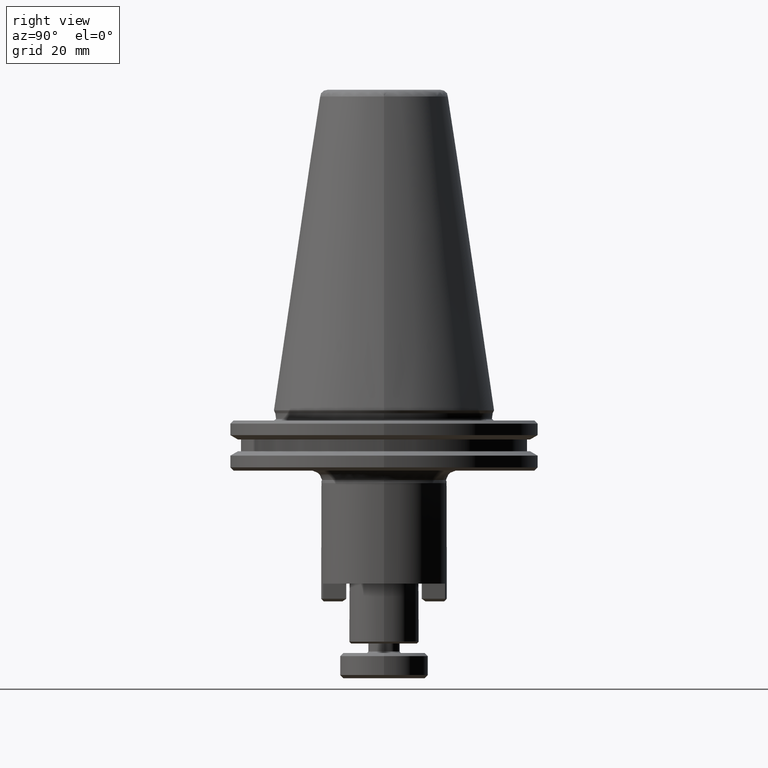
[diagram: clean part render]
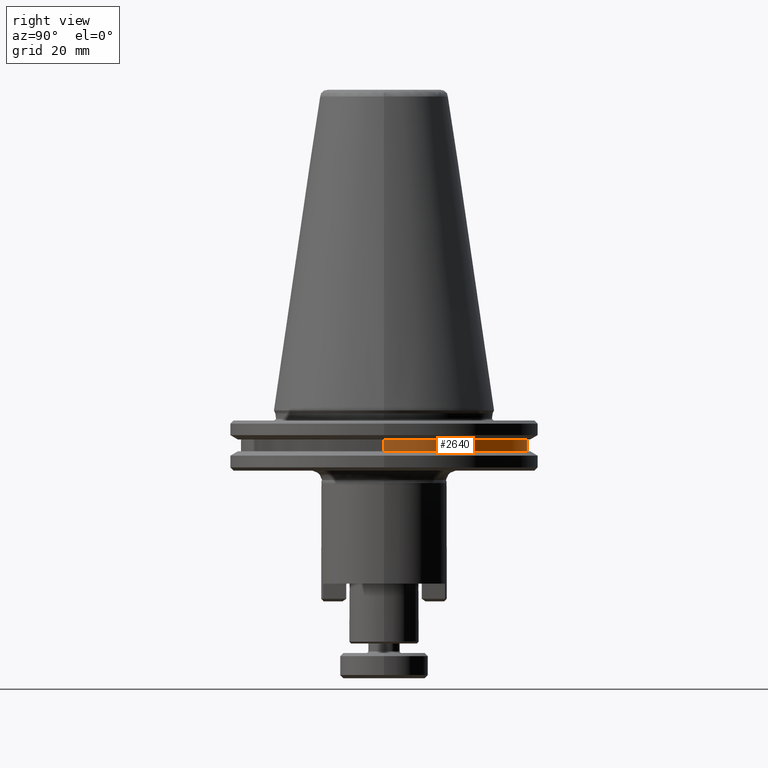
[diagram: same view with one face highlighted and labeled with its STEP entity id]
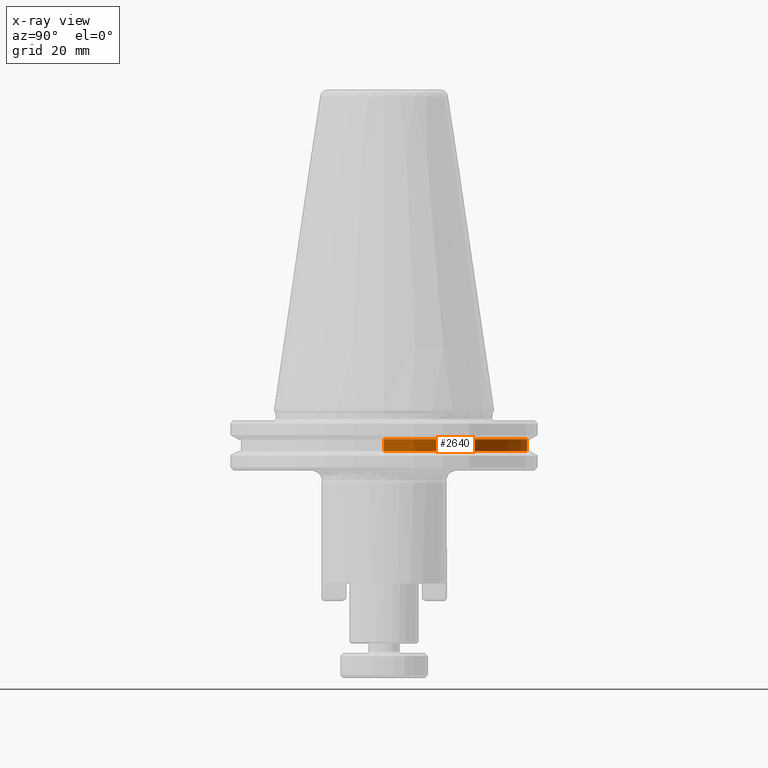
[diagram: x-ray of the same camera — body ghosted, the highlighted face saturated]
A machine part, right view. The second image highlights one B-rep face of the part: STEP entity #2640.
The next image is the same camera in x-ray: the body ghosted, the highlighted face saturated — about 0% of this face is hidden behind the body in this view.
In plain terms, the highlighted cylindrical surface (partial cylindrical patch) has radius 45.6335 mm, axis along (-0, -0, 1).
Its self-contained STEP definition (entity closure, byte-faithful):
#46 = DIRECTION ( 'NONE',  ( 1.000000000000000000, 0.0000000000000000000, 0.0000000000000000000 ) ) ;
#253 = EDGE_CURVE ( 'NONE', #811, #1769, #2678, .T. ) ;
#334 = EDGE_CURVE ( 'NONE', #1118, #450, #1735, .T. ) ;
#450 = VERTEX_POINT ( 'NONE', #611 ) ;
#499 = DIRECTION ( 'NONE',  ( 1.000000000000000000, 0.0000000000000000000, 0.0000000000000000000 ) ) ;
#536 = DIRECTION ( 'NONE',  ( -0.0000000000000000000, -0.0000000000000000000, 1.000000000000000000 ) ) ;
#563 = AXIS2_PLACEMENT_3D ( 'NONE', #2118, #1111, #499 ) ;
#565 = FACE_OUTER_BOUND ( 'NONE', #2100, .T. ) ;
#611 = CARTESIAN_POINT ( 'NONE',  ( 135.0734847565713000, 102.4230254990840100, 89.42642735088047300 ) ) ;
#680 = DIRECTION ( 'NONE',  ( 1.000000000000000000, 0.0000000000000000000, 0.0000000000000000000 ) ) ;
#776 = CARTESIAN_POINT ( 'NONE',  ( 43.80653352854568500, 102.4230254990840100, 85.67642735315523300 ) ) ;
#811 = VERTEX_POINT ( 'NONE', #776 ) ;
#908 = CARTESIAN_POINT ( 'NONE',  ( 89.44000914255849500, 102.4230254990840100, 198.2621979189365200 ) ) ;
#928 = CIRCLE ( 'NONE', #563, 45.63347561401280200 ) ;
#937 = DIRECTION ( 'NONE',  ( -0.0000000000000000000, -0.0000000000000000000, 1.000000000000000000 ) ) ;
#1111 = DIRECTION ( 'NONE',  ( -0.0000000000000000000, -0.0000000000000000000, 1.000000000000000000 ) ) ;
#1112 = ORIENTED_EDGE ( 'NONE', *, *, #253, .T. ) ;
#1118 = VERTEX_POINT ( 'NONE', #2517 ) ;
#1202 = CARTESIAN_POINT ( 'NONE',  ( 135.0734847565713000, 102.4230254990840100, 198.2621979189365200 ) ) ;
#1204 = DIRECTION ( 'NONE',  ( -0.0000000000000000000, -0.0000000000000000000, 1.000000000000000000 ) ) ;
#1267 = EDGE_CURVE ( 'NONE', #1118, #811, #928, .T. ) ;
#1412 = CARTESIAN_POINT ( 'NONE',  ( 43.80653352854568500, 102.4230254990840100, 198.2621979189365200 ) ) ;
#1593 = DIRECTION ( 'NONE',  ( -0.0000000000000000000, -0.0000000000000000000, 1.000000000000000000 ) ) ;
#1604 = EDGE_CURVE ( 'NONE', #450, #1769, #2534, .T. ) ;
#1622 = AXIS2_PLACEMENT_3D ( 'NONE', #2862, #937, #46 ) ;
#1734 = ORIENTED_EDGE ( 'NONE', *, *, #1267, .T. ) ;
#1735 = LINE ( 'NONE', #1202, #1884 ) ;
#1769 = VERTEX_POINT ( 'NONE', #1967 ) ;
#1884 = VECTOR ( 'NONE', #1204, 1000.000000000000000 ) ;
#1967 = CARTESIAN_POINT ( 'NONE',  ( 43.80653352854568500, 102.4230254990840100, 89.42642735088047300 ) ) ;
#2100 = EDGE_LOOP ( 'NONE', ( #1734, #1112, #2519, #2135 ) ) ;
#2118 = CARTESIAN_POINT ( 'NONE',  ( 89.44000914255849500, 102.4230254990840100, 85.67642735315523300 ) ) ;
#2135 = ORIENTED_EDGE ( 'NONE', *, *, #334, .F. ) ;
#2517 = CARTESIAN_POINT ( 'NONE',  ( 135.0734847565713000, 102.4230254990840100, 85.67642735315523300 ) ) ;
#2519 = ORIENTED_EDGE ( 'NONE', *, *, #1604, .F. ) ;
#2534 = CIRCLE ( 'NONE', #1622, 45.63347561401280200 ) ;
#2633 = CYLINDRICAL_SURFACE ( 'NONE', #2686, 45.63347561401280200 ) ;
#2640 = ADVANCED_FACE ( 'NONE', ( #565 ), #2633, .T. ) ;
#2678 = LINE ( 'NONE', #1412, #2747 ) ;
#2686 = AXIS2_PLACEMENT_3D ( 'NONE', #908, #536, #680 ) ;
#2747 = VECTOR ( 'NONE', #1593, 1000.000000000000000 ) ;
#2862 = CARTESIAN_POINT ( 'NONE',  ( 89.44000914255849500, 102.4230254990840100, 89.42642735088047300 ) ) ;